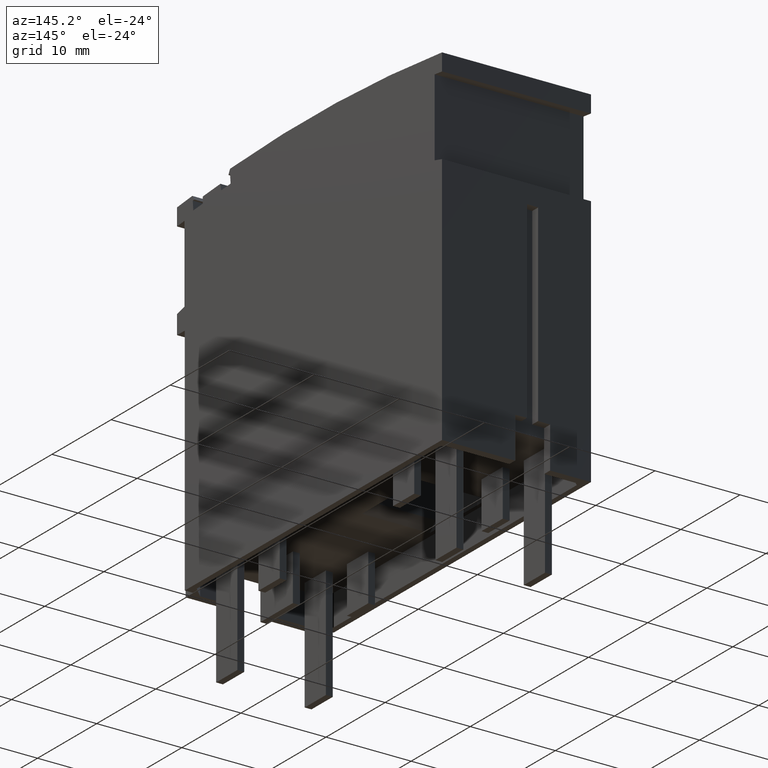
[diagram: clean part render]
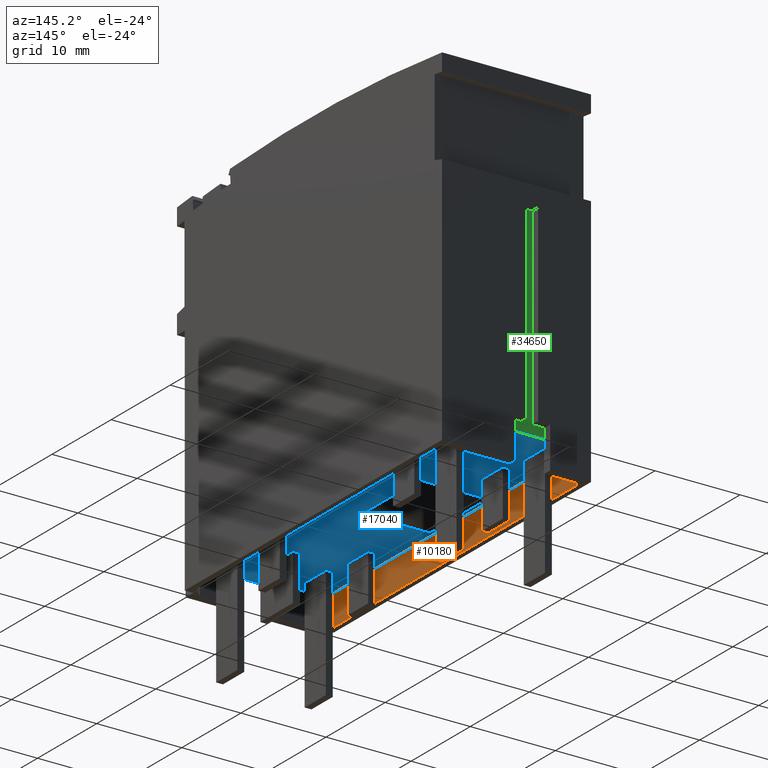
[diagram: same view with three faces highlighted in distinct colors, each labeled with its STEP entity id]
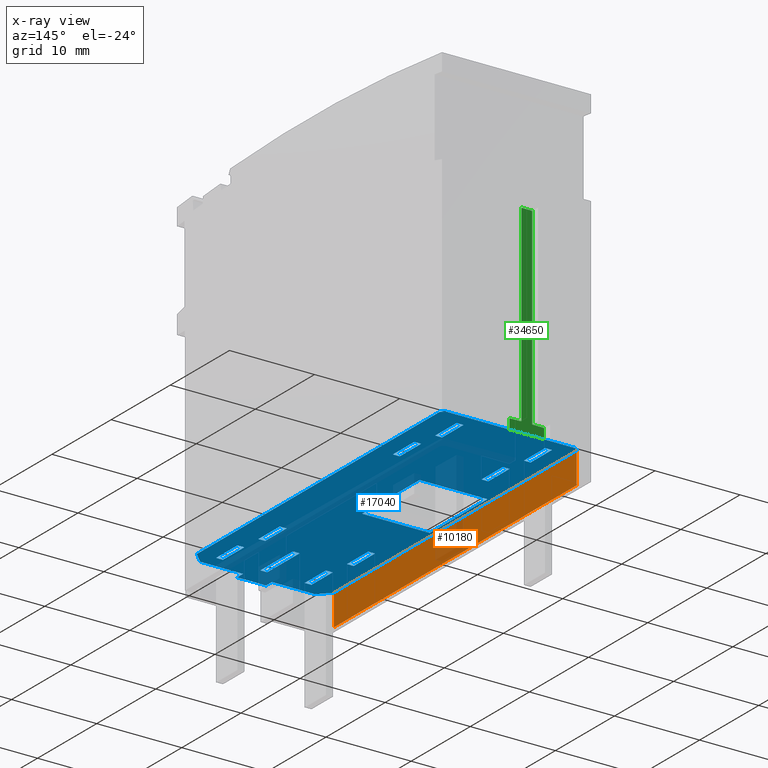
[diagram: x-ray of the same camera — body ghosted, the three highlighted faces saturated]
A machine part, auxiliary view with three faces highlighted in distinct colors.
The next image is the same camera in x-ray (body ghosted, the three faces saturated) — at least one of them is partly hidden behind the body in this view.
Their STEP definitions:

[orange] entity #10180 — the highlighted planar face has unit normal (1, -0, -0).
#7660=CARTESIAN_POINT('',(89.42419402639,27.8562740524438,
-48.7500000000925));
#7670=VERTEX_POINT('',#7660);
#7700=CARTESIAN_POINT('',(91.741351313916,27.8562740524438,
-48.7500000000925));
#7710=DIRECTION('',(-1.,0.,-2.44929359829471E-16));
#7720=VECTOR('',#7710,1.);
#7730=LINE('',#7700,#7720);
#7740=CARTESIAN_POINT('',(48.3413513139147,27.8562740524438,
-48.7500000000925));
#7750=VERTEX_POINT('',#7740);
#7760=EDGE_CURVE('',#7670,#7750,#7730,.T.);
#9620=CARTESIAN_POINT('',(48.3413513139147,-45.8562740524438,
-48.7500000000925));
#9630=DIRECTION('',(0.,1.,0.));
#9640=VECTOR('',#9630,1.);
#9650=LINE('',#9620,#9640);
#9660=CARTESIAN_POINT('',(48.3413513139147,31.5062740524438,
-48.7500000000925));
#9670=VERTEX_POINT('',#9660);
#9680=EDGE_CURVE('',#7750,#9670,#9650,.T.);
#9950=CARTESIAN_POINT('',(48.3413513139147,27.8562740524438,
-48.7500000000925));
#9960=DIRECTION('',(2.44929359829471E-16,0.,-1.));
#9970=DIRECTION('',(-1.,0.,-2.44929359829471E-16));
#9980=AXIS2_PLACEMENT_3D('',#9950,#9960,#9970);
#9990=PLANE('',#9980);
#10000=CARTESIAN_POINT('',(89.42419402639,-45.8562740524438,
-48.7500000000925));
#10010=DIRECTION('',(0.,1.,0.));
#10020=VECTOR('',#10010,1.);
#10030=LINE('',#10000,#10020);
#10040=CARTESIAN_POINT('',(89.42419402639,31.5062740524438,
-48.7500000000925));
#10050=VERTEX_POINT('',#10040);
#10060=EDGE_CURVE('',#7670,#10050,#10030,.T.);
#10070=ORIENTED_EDGE('',*,*,#10060,.F.);
#10080=CARTESIAN_POINT('',(91.741351313916,31.5062740524438,
-48.7500000000925));
#10090=DIRECTION('',(-1.,0.,-2.44929359829471E-16));
#10100=VECTOR('',#10090,1.);
#10110=LINE('',#10080,#10100);
#10120=EDGE_CURVE('',#10050,#9670,#10110,.T.);
#10130=ORIENTED_EDGE('',*,*,#10120,.F.);
#10140=ORIENTED_EDGE('',*,*,#9680,.T.);
#10150=ORIENTED_EDGE('',*,*,#7760,.T.);
#10160=EDGE_LOOP('',(#10150,#10140,#10130,#10070));
#10170=FACE_OUTER_BOUND('',#10160,.T.);
#10180=ADVANCED_FACE('',(#10170),#9990,.T.);

[blue] entity #17040 — the highlighted planar face has unit normal (-0, -0, -1).
#8810=CARTESIAN_POINT('',(91.741351313916,31.5062740524438,
-58.5000000000926));
#8820=VERTEX_POINT('',#8810);
#8850=CARTESIAN_POINT('',(91.741351313916,31.5062740524438,
-65.5500000000924));
#8860=DIRECTION('',(3.67394039744206E-16,0.,-1.));
#8870=VECTOR('',#8860,1.);
#8880=LINE('',#8850,#8870);
#8890=CARTESIAN_POINT('',(91.741351313916,31.5062740524438,
-55.1000000000925));
#8900=VERTEX_POINT('',#8890);
#8910=EDGE_CURVE('',#8900,#8820,#8880,.T.);
#9240=CARTESIAN_POINT('',(90.7413513139161,31.5062740524438,
-65.5500000000924));
#9250=DIRECTION('',(-2.44929359829471E-16,0.,1.));
#9260=VECTOR('',#9250,1.);
#9270=LINE('',#9240,#9260);
#9280=CARTESIAN_POINT('',(90.7413513139161,31.5062740524438,
-55.1000000000925));
#9290=VERTEX_POINT('',#9280);
#9300=CARTESIAN_POINT('',(90.741351313916,31.5062740524438,
-50.0671572876185));
#9310=VERTEX_POINT('',#9300);
#9320=EDGE_CURVE('',#9290,#9310,#9270,.T.);
#9660=CARTESIAN_POINT('',(48.3413513139147,31.5062740524438,
-48.7500000000925));
#9670=VERTEX_POINT('',#9660);
#9700=CARTESIAN_POINT('',(91.741351313916,31.5062740524438,
-5.35000000009199));
#9710=DIRECTION('',(-0.707106781186554,0.,-0.707106781186541));
#9720=VECTOR('',#9710,1.);
#9730=LINE('',#9700,#9720);
#9740=CARTESIAN_POINT('',(47.9413513139147,31.5062740524438,
-49.1500000000925));
#9750=VERTEX_POINT('',#9740);
#9760=EDGE_CURVE('',#9670,#9750,#9730,.T.);
#10040=CARTESIAN_POINT('',(89.42419402639,31.5062740524438,
-48.7500000000925));
#10050=VERTEX_POINT('',#10040);
#10080=CARTESIAN_POINT('',(91.741351313916,31.5062740524438,
-48.7500000000925));
#10090=DIRECTION('',(-1.,0.,-2.44929359829471E-16));
#10100=VECTOR('',#10090,1.);
#10110=LINE('',#10080,#10100);
#10120=EDGE_CURVE('',#10050,#9670,#10110,.T.);
#10320=CARTESIAN_POINT('',(91.741351313916,31.5062740524438,
-51.0671572876185));
#10330=DIRECTION('',(-0.707106781186559,0.,0.707106781186536));
#10340=VECTOR('',#10330,1.);
#10350=LINE('',#10320,#10340);
#10360=EDGE_CURVE('',#9310,#10050,#10350,.T.);
#10570=CARTESIAN_POINT('',(47.9413513139147,31.5062740524438,
-65.5500000000924));
#10580=DIRECTION('',(2.33503894187242E-16,0.,-1.));
#10590=VECTOR('',#10580,1.);
#10600=LINE('',#10570,#10590);
#10610=CARTESIAN_POINT('',(47.9413513139147,31.5062740524438,
-52.8500000000925));
#10620=VERTEX_POINT('',#10610);
#10630=EDGE_CURVE('',#9750,#10620,#10600,.T.);
#11650=CARTESIAN_POINT('',(47.9413513139147,31.5062740524438,
-64.4500000000926));
#11660=VERTEX_POINT('',#11650);
#11740=CARTESIAN_POINT('',(47.9413513139147,31.5062740524438,
-56.9500000000926));
#11750=VERTEX_POINT('',#11740);
#11780=EDGE_CURVE('',#11750,#11660,#10600,.T.);
#11960=CARTESIAN_POINT('',(91.741351313916,31.5062740524438,
-108.250000000093));
#11970=DIRECTION('',(0.707106781186554,0.,-0.707106781186541));
#11980=VECTOR('',#11970,1.);
#11990=LINE('',#11960,#11980);
#12000=CARTESIAN_POINT('',(48.3413513139147,31.5062740524438,
-64.8500000000926));
#12010=VERTEX_POINT('',#12000);
#12020=EDGE_CURVE('',#11660,#12010,#11990,.T.);
#12270=CARTESIAN_POINT('',(91.741351313916,31.5062740524438,
-64.8500000000926));
#12280=DIRECTION('',(1.,0.,1.22464679914735E-16));
#12290=VECTOR('',#12280,1.);
#12300=LINE('',#12270,#12290);
#12310=CARTESIAN_POINT('',(89.4241940253669,31.5062740524438,
-64.8500000000926));
#12320=VERTEX_POINT('',#12310);
#12330=EDGE_CURVE('',#12010,#12320,#12300,.T.);
#12580=CARTESIAN_POINT('',(91.741351313916,31.5062740524438,
-62.5328427115435));
#12590=DIRECTION('',(0.707106781186559,0.,0.707106781186536));
#12600=VECTOR('',#12590,1.);
#12610=LINE('',#12580,#12600);
#12620=CARTESIAN_POINT('',(90.741351313916,31.5062740524438,
-63.5328427115434));
#12630=VERTEX_POINT('',#12620);
#12640=EDGE_CURVE('',#12320,#12630,#12610,.T.);
#12870=CARTESIAN_POINT('',(90.741351313916,31.5062740524438,
-58.5000000000926));
#12880=VERTEX_POINT('',#12870);
#12930=CARTESIAN_POINT('',(90.7413513139161,31.5062740524438,
-65.5500000000924));
#12940=DIRECTION('',(-2.44929359829471E-16,0.,1.));
#12950=VECTOR('',#12940,1.);
#12960=LINE('',#12930,#12950);
#12970=EDGE_CURVE('',#12630,#12880,#12960,.T.);
#13170=CARTESIAN_POINT('',(91.741351313916,31.5062740524438,
-58.5000000000926));
#13180=DIRECTION('',(1.,0.,3.67394039744206E-16));
#13190=VECTOR('',#13180,1.);
#13200=LINE('',#13170,#13190);
#13210=EDGE_CURVE('',#12880,#8820,#13200,.T.);
#13330=CARTESIAN_POINT('',(54.8369267801929,31.5062740524438,
-57.2310781818231));
#13340=DIRECTION('',(0.,-1.,0.));
#13350=DIRECTION('',(1.,0.,2.4492935982947E-16));
#13360=AXIS2_PLACEMENT_3D('',#13330,#13340,#13350);
#13370=PLANE('',#13360);
#13380=CARTESIAN_POINT('',(91.741351313916,31.5062740524438,
-56.8000000000925));
#13390=DIRECTION('',(-1.,0.,-2.4492935982947E-16));
#13400=VECTOR('',#13390,1.);
#13410=LINE('',#13380,#13400);
#13420=CARTESIAN_POINT('',(89.0913513139154,31.5062740524438,
-56.8000000000925));
#13430=VERTEX_POINT('',#13420);
#13440=CARTESIAN_POINT('',(83.5913513139154,31.5062740524438,
-56.8000000000925));
#13450=VERTEX_POINT('',#13440);
#13460=EDGE_CURVE('',#13430,#13450,#13410,.T.);
#13470=ORIENTED_EDGE('',*,*,#13460,.F.);
#13480=CARTESIAN_POINT('',(83.5913513139154,31.5062740524438,
-65.5500000000924));
#13490=DIRECTION('',(2.4492935982947E-16,0.,-1.));
#13500=VECTOR('',#13490,1.);
#13510=LINE('',#13480,#13500);
#13520=CARTESIAN_POINT('',(83.5913513139154,31.5062740524438,
-57.6000000000925));
#13530=VERTEX_POINT('',#13520);
#13540=EDGE_CURVE('',#13450,#13530,#13510,.T.);
#13550=ORIENTED_EDGE('',*,*,#13540,.F.);
#13560=CARTESIAN_POINT('',(91.741351313916,31.5062740524438,
-57.6000000000925));
#13570=DIRECTION('',(1.,0.,2.4492935982947E-16));
#13580=VECTOR('',#13570,1.);
#13590=LINE('',#13560,#13580);
#13600=CARTESIAN_POINT('',(89.0913513139154,31.5062740524438,
-57.6000000000925));
#13610=VERTEX_POINT('',#13600);
#13620=EDGE_CURVE('',#13530,#13610,#13590,.T.);
#13630=ORIENTED_EDGE('',*,*,#13620,.F.);
#13640=CARTESIAN_POINT('',(89.0913513139154,31.5062740524438,
-65.5500000000924));
#13650=DIRECTION('',(-2.4492935982947E-16,0.,1.));
#13660=VECTOR('',#13650,1.);
#13670=LINE('',#13640,#13660);
#13680=EDGE_CURVE('',#13610,#13430,#13670,.T.);
#13690=ORIENTED_EDGE('',*,*,#13680,.F.);
#13700=EDGE_LOOP('',(#13690,#13630,#13550,#13470));
#13710=FACE_BOUND('',#13700,.T.);
#13720=CARTESIAN_POINT('',(91.741351313916,31.5062740524438,
-49.2500000000926));
#13730=DIRECTION('',(1.,0.,2.4492935982947E-16));
#13740=VECTOR('',#13730,1.);
#13750=LINE('',#13720,#13740);
#13760=CARTESIAN_POINT('',(62.7250151069632,31.5062740524438,
-49.2500000000926));
#13770=VERTEX_POINT('',#13760);
#13780=CARTESIAN_POINT('',(72.4576875208675,31.5062740524438,
-49.2500000000926));
#13790=VERTEX_POINT('',#13780);
#13800=EDGE_CURVE('',#13770,#13790,#13750,.T.);
#13810=ORIENTED_EDGE('',*,*,#13800,.T.);
#13820=CARTESIAN_POINT('',(62.7250151069632,31.5062740524438,
-52.7331681035687));
#13830=DIRECTION('',(-2.4492935982947E-16,0.,1.));
#13840=VECTOR('',#13830,1.);
#13850=LINE('',#13820,#13840);
#13860=CARTESIAN_POINT('',(62.7250151069632,31.5062740524438,
-57.2163362070448));
#13870=VERTEX_POINT('',#13860);
#13880=EDGE_CURVE('',#13870,#13770,#13850,.T.);
#13890=ORIENTED_EDGE('',*,*,#13880,.T.);
#13900=CARTESIAN_POINT('',(67.0913513139154,31.5062740524438,
-57.2163362070448));
#13910=DIRECTION('',(-1.,0.,-2.4492935982947E-16));
#13920=VECTOR('',#13910,1.);
#13930=LINE('',#13900,#13920);
#13940=CARTESIAN_POINT('',(72.4576875208675,31.5062740524438,
-57.2163362070448));
#13950=VERTEX_POINT('',#13940);
#13960=EDGE_CURVE('',#13950,#13870,#13930,.T.);
#13970=ORIENTED_EDGE('',*,*,#13960,.T.);
#13980=CARTESIAN_POINT('',(72.4576875208675,31.5062740524438,
-53.2331681035687));
#13990=DIRECTION('',(2.4492935982947E-16,0.,-1.));
#14000=VECTOR('',#13990,1.);
#14010=LINE('',#13980,#14000);
#14020=EDGE_CURVE('',#13790,#13950,#14010,.T.);
#14030=ORIENTED_EDGE('',*,*,#14020,.T.);
#14040=EDGE_LOOP('',(#14030,#13970,#13890,#13810));
#14050=FACE_BOUND('',#14040,.T.);
#14060=CARTESIAN_POINT('',(91.741351313916,31.5062740524438,
-62.8000000000926));
#14070=DIRECTION('',(1.,0.,2.4492935982947E-16));
#14080=VECTOR('',#14070,1.);
#14090=LINE('',#14060,#14080);
#14100=CARTESIAN_POINT('',(55.5913513139154,31.5062740524438,
-62.8000000000926));
#14110=VERTEX_POINT('',#14100);
#14120=CARTESIAN_POINT('',(59.1913513139154,31.5062740524438,
-62.8000000000926));
#14130=VERTEX_POINT('',#14120);
#14140=EDGE_CURVE('',#14110,#14130,#14090,.T.);
#14150=ORIENTED_EDGE('',*,*,#14140,.F.);
#14160=CARTESIAN_POINT('',(59.1913513139154,31.5062740524438,
-65.5500000000924));
#14170=DIRECTION('',(-2.4492935982947E-16,0.,1.));
#14180=VECTOR('',#14170,1.);
#14190=LINE('',#14160,#14180);
#14200=CARTESIAN_POINT('',(59.1913513139154,31.5062740524438,
-62.0000000000926));
#14210=VERTEX_POINT('',#14200);
#14220=EDGE_CURVE('',#14130,#14210,#14190,.T.);
#14230=ORIENTED_EDGE('',*,*,#14220,.F.);
#14240=CARTESIAN_POINT('',(91.741351313916,31.5062740524438,
-62.0000000000926));
#14250=DIRECTION('',(-1.,0.,-2.4492935982947E-16));
#14260=VECTOR('',#14250,1.);
#14270=LINE('',#14240,#14260);
#14280=CARTESIAN_POINT('',(55.5913513139154,31.5062740524438,
-62.0000000000926));
#14290=VERTEX_POINT('',#14280);
#14300=EDGE_CURVE('',#14210,#14290,#14270,.T.);
#14310=ORIENTED_EDGE('',*,*,#14300,.F.);
#14320=CARTESIAN_POINT('',(55.5913513139154,31.5062740524438,
-65.5500000000924));
#14330=DIRECTION('',(2.4492935982947E-16,0.,-1.));
#14340=VECTOR('',#14330,1.);
#14350=LINE('',#14320,#14340);
#14360=EDGE_CURVE('',#14290,#14110,#14350,.T.);
#14370=ORIENTED_EDGE('',*,*,#14360,.F.);
#14380=EDGE_LOOP('',(#14370,#14310,#14230,#14150));
#14390=FACE_BOUND('',#14380,.T.);
#14400=CARTESIAN_POINT('',(79.4913513139153,31.5062740524438,
-65.5500000000924));
#14410=DIRECTION('',(2.4492935982947E-16,0.,-1.));
#14420=VECTOR('',#14410,1.);
#14430=LINE('',#14400,#14420);
#14440=CARTESIAN_POINT('',(79.4913513139153,31.5062740524438,
-50.8000000000926));
#14450=VERTEX_POINT('',#14440);
#14460=CARTESIAN_POINT('',(79.4913513139153,31.5062740524438,
-51.6000000000926));
#14470=VERTEX_POINT('',#14460);
#14480=EDGE_CURVE('',#14450,#14470,#14430,.T.);
#14490=ORIENTED_EDGE('',*,*,#14480,.F.);
#14500=CARTESIAN_POINT('',(91.741351313916,31.5062740524438,
-51.6000000000926));
#14510=DIRECTION('',(1.,0.,2.4492935982947E-16));
#14520=VECTOR('',#14510,1.);
#14530=LINE('',#14500,#14520);
#14540=CARTESIAN_POINT('',(83.0913513139153,31.5062740524438,
-51.6000000000926));
#14550=VERTEX_POINT('',#14540);
#14560=EDGE_CURVE('',#14470,#14550,#14530,.T.);
#14570=ORIENTED_EDGE('',*,*,#14560,.F.);
#14580=CARTESIAN_POINT('',(83.0913513139153,31.5062740524438,
-65.5500000000924));
#14590=DIRECTION('',(-2.4492935982947E-16,0.,1.));
#14600=VECTOR('',#14590,1.);
#14610=LINE('',#14580,#14600);
#14620=CARTESIAN_POINT('',(83.0913513139153,31.5062740524438,
-50.8000000000926));
#14630=VERTEX_POINT('',#14620);
#14640=EDGE_CURVE('',#14550,#14630,#14610,.T.);
#14650=ORIENTED_EDGE('',*,*,#14640,.F.);
#14660=CARTESIAN_POINT('',(91.741351313916,31.5062740524438,
-50.8000000000926));
#14670=DIRECTION('',(-1.,0.,-2.4492935982947E-16));
#14680=VECTOR('',#14670,1.);
#14690=LINE('',#14660,#14680);
#14700=EDGE_CURVE('',#14630,#14450,#14690,.T.);
#14710=ORIENTED_EDGE('',*,*,#14700,.F.);
#14720=EDGE_LOOP('',(#14710,#14650,#14570,#14490));
#14730=FACE_BOUND('',#14720,.T.);
#14740=CARTESIAN_POINT('',(91.741351313916,31.5062740524438,
-52.4000000000926));
#14750=DIRECTION('',(1.,0.,2.4492935982947E-16));
#14760=VECTOR('',#14750,1.);
#14770=LINE('',#14740,#14760);
#14780=CARTESIAN_POINT('',(55.5913513139154,31.5062740524438,
-52.4000000000926));
#14790=VERTEX_POINT('',#14780);
#14800=CARTESIAN_POINT('',(59.1913513139154,31.5062740524438,
-52.4000000000926));
#14810=VERTEX_POINT('',#14800);
#14820=EDGE_CURVE('',#14790,#14810,#14770,.T.);
#14830=ORIENTED_EDGE('',*,*,#14820,.F.);
#14840=CARTESIAN_POINT('',(59.1913513139154,31.5062740524438,
-65.5500000000924));
#14850=DIRECTION('',(-2.4492935982947E-16,0.,1.));
#14860=VECTOR('',#14850,1.);
#14870=LINE('',#14840,#14860);
#14880=CARTESIAN_POINT('',(59.1913513139154,31.5062740524438,
-51.6000000000926));
#14890=VERTEX_POINT('',#14880);
#14900=EDGE_CURVE('',#14810,#14890,#14870,.T.);
#14910=ORIENTED_EDGE('',*,*,#14900,.F.);
#14920=CARTESIAN_POINT('',(91.741351313916,31.5062740524438,
-51.6000000000926));
#14930=DIRECTION('',(-1.,0.,-2.4492935982947E-16));
#14940=VECTOR('',#14930,1.);
#14950=LINE('',#14920,#14940);
#14960=CARTESIAN_POINT('',(55.5913513139154,31.5062740524438,
-51.6000000000926));
#14970=VERTEX_POINT('',#14960);
#14980=EDGE_CURVE('',#14890,#14970,#14950,.T.);
#14990=ORIENTED_EDGE('',*,*,#14980,.F.);
#15000=CARTESIAN_POINT('',(55.5913513139154,31.5062740524438,
-65.5500000000924));
#15010=DIRECTION('',(2.4492935982947E-16,0.,-1.));
#15020=VECTOR('',#15010,1.);
#15030=LINE('',#15000,#15020);
#15040=EDGE_CURVE('',#14970,#14790,#15030,.T.);
#15050=ORIENTED_EDGE('',*,*,#15040,.F.);
#15060=EDGE_LOOP('',(#15050,#14990,#14910,#14830));
#15070=FACE_BOUND('',#15060,.T.);
#15080=CARTESIAN_POINT('',(91.741351313916,31.5062740524438,
-61.2000000000926));
#15090=DIRECTION('',(-1.,0.,-2.4492935982947E-16));
#15100=VECTOR('',#15090,1.);
#15110=LINE('',#15080,#15100);
#15120=CARTESIAN_POINT('',(83.0913513139153,31.5062740524438,
-61.2000000000926));
#15130=VERTEX_POINT('',#15120);
#15140=CARTESIAN_POINT('',(79.4913513139153,31.5062740524438,
-61.2000000000926));
#15150=VERTEX_POINT('',#15140);
#15160=EDGE_CURVE('',#15130,#15150,#15110,.T.);
#15170=ORIENTED_EDGE('',*,*,#15160,.F.);
#15180=CARTESIAN_POINT('',(79.4913513139153,31.5062740524438,
-65.5500000000924));
#15190=DIRECTION('',(2.4492935982947E-16,0.,-1.));
#15200=VECTOR('',#15190,1.);
#15210=LINE('',#15180,#15200);
#15220=CARTESIAN_POINT('',(79.4913513139153,31.5062740524438,
-62.0000000000926));
#15230=VERTEX_POINT('',#15220);
#15240=EDGE_CURVE('',#15150,#15230,#15210,.T.);
#15250=ORIENTED_EDGE('',*,*,#15240,.F.);
#15260=CARTESIAN_POINT('',(91.741351313916,31.5062740524438,
-62.0000000000926));
#15270=DIRECTION('',(1.,0.,2.4492935982947E-16));
#15280=VECTOR('',#15270,1.);
#15290=LINE('',#15260,#15280);
#15300=CARTESIAN_POINT('',(83.0913513139153,31.5062740524438,
-62.0000000000926));
#15310=VERTEX_POINT('',#15300);
#15320=EDGE_CURVE('',#15230,#15310,#15290,.T.);
#15330=ORIENTED_EDGE('',*,*,#15320,.F.);
#15340=CARTESIAN_POINT('',(83.0913513139153,31.5062740524438,
-65.5500000000924));
#15350=DIRECTION('',(-2.4492935982947E-16,0.,1.));
#15360=VECTOR('',#15350,1.);
#15370=LINE('',#15340,#15360);
#15380=EDGE_CURVE('',#15310,#15130,#15370,.T.);
#15390=ORIENTED_EDGE('',*,*,#15380,.F.);
#15400=EDGE_LOOP('',(#15390,#15330,#15250,#15170));
#15410=FACE_BOUND('',#15400,.T.);
#15420=ORIENTED_EDGE('',*,*,#13210,.T.);
#15430=ORIENTED_EDGE('',*,*,#12970,.T.);
#15440=ORIENTED_EDGE('',*,*,#12640,.T.);
#15450=ORIENTED_EDGE('',*,*,#12330,.T.);
#15460=ORIENTED_EDGE('',*,*,#12020,.T.);
#15470=ORIENTED_EDGE('',*,*,#11780,.T.);
#15480=CARTESIAN_POINT('',(47.9413513139147,31.5062740524438,
-65.5500000000924));
#15490=DIRECTION('',(2.44929359829471E-16,0.,-1.));
#15500=VECTOR('',#15490,1.);
#15510=LINE('',#15480,#15500);
#15520=EDGE_CURVE('',#10620,#11750,#15510,.T.);
#15530=ORIENTED_EDGE('',*,*,#15520,.T.);
#15540=ORIENTED_EDGE('',*,*,#10630,.T.);
#15550=ORIENTED_EDGE('',*,*,#9760,.T.);
#15560=ORIENTED_EDGE('',*,*,#10120,.T.);
#15570=ORIENTED_EDGE('',*,*,#10360,.T.);
#15580=ORIENTED_EDGE('',*,*,#9320,.T.);
#15590=CARTESIAN_POINT('',(91.741351313916,31.5062740524438,
-55.1000000000925));
#15600=DIRECTION('',(1.,0.,3.67394039744206E-16));
#15610=VECTOR('',#15600,1.);
#15620=LINE('',#15590,#15610);
#15630=EDGE_CURVE('',#9290,#8900,#15620,.T.);
#15640=ORIENTED_EDGE('',*,*,#15630,.F.);
#15650=ORIENTED_EDGE('',*,*,#8910,.F.);
#15660=EDGE_LOOP('',(#15650,#15640,#15580,#15570,#15560,#15550,#15540,
#15530,#15470,#15460,#15450,#15440,#15430,#15420));
#15670=FACE_OUTER_BOUND('',#15660,.T.);
#15680=CARTESIAN_POINT('',(5.6843418860808E-14,31.5062740524438,
-50.8000000000926));
#15690=DIRECTION('',(-1.,0.,-2.4492935982947E-16));
#15700=VECTOR('',#15690,1.);
#15710=LINE('',#15680,#15700);
#15720=CARTESIAN_POINT('',(53.1913513139154,31.5062740524438,
-50.8000000000926));
#15730=VERTEX_POINT('',#15720);
#15740=CARTESIAN_POINT('',(49.5913513139154,31.5062740524438,
-50.8000000000926));
#15750=VERTEX_POINT('',#15740);
#15760=EDGE_CURVE('',#15730,#15750,#15710,.T.);
#15770=ORIENTED_EDGE('',*,*,#15760,.F.);
#15780=CARTESIAN_POINT('',(49.5913513139154,31.5062740524438,
0.0499999999075413));
#15790=DIRECTION('',(2.4492935982947E-16,0.,-1.));
#15800=VECTOR('',#15790,1.);
#15810=LINE('',#15780,#15800);
#15820=CARTESIAN_POINT('',(49.5913513139154,31.5062740524438,
-51.6000000000926));
#15830=VERTEX_POINT('',#15820);
#15840=EDGE_CURVE('',#15750,#15830,#15810,.T.);
#15850=ORIENTED_EDGE('',*,*,#15840,.F.);
#15860=CARTESIAN_POINT('',(5.6843418860808E-14,31.5062740524438,
-51.6000000000926));
#15870=DIRECTION('',(1.,0.,2.4492935982947E-16));
#15880=VECTOR('',#15870,1.);
#15890=LINE('',#15860,#15880);
#15900=CARTESIAN_POINT('',(53.1913513139154,31.5062740524438,
-51.6000000000926));
#15910=VERTEX_POINT('',#15900);
#15920=EDGE_CURVE('',#15830,#15910,#15890,.T.);
#15930=ORIENTED_EDGE('',*,*,#15920,.F.);
#15940=CARTESIAN_POINT('',(53.1913513139154,31.5062740524438,
0.0499999999075413));
#15950=DIRECTION('',(-2.4492935982947E-16,0.,1.));
#15960=VECTOR('',#15950,1.);
#15970=LINE('',#15940,#15960);
#15980=EDGE_CURVE('',#15910,#15730,#15970,.T.);
#15990=ORIENTED_EDGE('',*,*,#15980,.F.);
#16000=EDGE_LOOP('',(#15990,#15930,#15850,#15770));
#16010=FACE_BOUND('',#16000,.T.);
#16020=CARTESIAN_POINT('',(5.6843418860808E-14,31.5062740524438,
-61.2000000000926));
#16030=DIRECTION('',(-1.,0.,-2.4492935982947E-16));
#16040=VECTOR('',#16030,1.);
#16050=LINE('',#16020,#16040);
#16060=CARTESIAN_POINT('',(53.1913513139154,31.5062740524438,
-61.2000000000926));
#16070=VERTEX_POINT('',#16060);
#16080=CARTESIAN_POINT('',(49.5913513139151,31.5062740524438,
-61.2000000000926));
#16090=VERTEX_POINT('',#16080);
#16100=EDGE_CURVE('',#16070,#16090,#16050,.T.);
#16110=ORIENTED_EDGE('',*,*,#16100,.F.);
#16120=CARTESIAN_POINT('',(49.5913513139151,31.5062740524438,
0.0499999999075413));
#16130=DIRECTION('',(2.4492935982947E-16,0.,-1.));
#16140=VECTOR('',#16130,1.);
#16150=LINE('',#16120,#16140);
#16160=CARTESIAN_POINT('',(49.5913513139151,31.5062740524438,
-62.0000000000926));
#16170=VERTEX_POINT('',#16160);
#16180=EDGE_CURVE('',#16090,#16170,#16150,.T.);
#16190=ORIENTED_EDGE('',*,*,#16180,.F.);
#16200=CARTESIAN_POINT('',(5.6843418860808E-14,31.5062740524438,
-62.0000000000926));
#16210=DIRECTION('',(1.,0.,2.4492935982947E-16));
#16220=VECTOR('',#16210,1.);
#16230=LINE('',#16200,#16220);
#16240=CARTESIAN_POINT('',(53.1913513139154,31.5062740524438,
-62.0000000000926));
#16250=VERTEX_POINT('',#16240);
#16260=EDGE_CURVE('',#16170,#16250,#16230,.T.);
#16270=ORIENTED_EDGE('',*,*,#16260,.F.);
#16280=CARTESIAN_POINT('',(53.1913513139154,31.5062740524438,
0.0499999999075413));
#16290=DIRECTION('',(-2.4492935982947E-16,0.,1.));
#16300=VECTOR('',#16290,1.);
#16310=LINE('',#16280,#16300);
#16320=EDGE_CURVE('',#16250,#16070,#16310,.T.);
#16330=ORIENTED_EDGE('',*,*,#16320,.F.);
#16340=EDGE_LOOP('',(#16330,#16270,#16190,#16110));
#16350=FACE_BOUND('',#16340,.T.);
#16360=CARTESIAN_POINT('',(5.6843418860808E-14,31.5062740524438,
-62.0000000000926));
#16370=DIRECTION('',(-1.,0.,-2.4492935982947E-16));
#16380=VECTOR('',#16370,1.);
#16390=LINE('',#16360,#16380);
#16400=CARTESIAN_POINT('',(89.0913513139153,31.5062740524438,
-62.0000000000926));
#16410=VERTEX_POINT('',#16400);
#16420=CARTESIAN_POINT('',(85.4913513139153,31.5062740524438,
-62.0000000000926));
#16430=VERTEX_POINT('',#16420);
#16440=EDGE_CURVE('',#16410,#16430,#16390,.T.);
#16450=ORIENTED_EDGE('',*,*,#16440,.F.);
#16460=CARTESIAN_POINT('',(85.4913513139153,31.5062740524438,
0.0499999999075413));
#16470=DIRECTION('',(2.4492935982947E-16,0.,-1.));
#16480=VECTOR('',#16470,1.);
#16490=LINE('',#16460,#16480);
#16500=CARTESIAN_POINT('',(85.4913513139153,31.5062740524438,
-62.8000000000926));
#16510=VERTEX_POINT('',#16500);
#16520=EDGE_CURVE('',#16430,#16510,#16490,.T.);
#16530=ORIENTED_EDGE('',*,*,#16520,.F.);
#16540=CARTESIAN_POINT('',(5.6843418860808E-14,31.5062740524438,
-62.8000000000926));
#16550=DIRECTION('',(1.,0.,2.4492935982947E-16));
#16560=VECTOR('',#16550,1.);
#16570=LINE('',#16540,#16560);
#16580=CARTESIAN_POINT('',(89.0913513139153,31.5062740524438,
-62.8000000000926));
#16590=VERTEX_POINT('',#16580);
#16600=EDGE_CURVE('',#16510,#16590,#16570,.T.);
#16610=ORIENTED_EDGE('',*,*,#16600,.F.);
#16620=CARTESIAN_POINT('',(89.0913513139153,31.5062740524438,
0.0499999999075413));
#16630=DIRECTION('',(-2.4492935982947E-16,0.,1.));
#16640=VECTOR('',#16630,1.);
#16650=LINE('',#16620,#16640);
#16660=EDGE_CURVE('',#16590,#16410,#16650,.T.);
#16670=ORIENTED_EDGE('',*,*,#16660,.F.);
#16680=EDGE_LOOP('',(#16670,#16610,#16530,#16450));
#16690=FACE_BOUND('',#16680,.T.);
#16700=CARTESIAN_POINT('',(5.6843418860808E-14,31.5062740524438,
-51.6000000000925));
#16710=DIRECTION('',(-1.,0.,-2.4492935982947E-16));
#16720=VECTOR('',#16710,1.);
#16730=LINE('',#16700,#16720);
#16740=CARTESIAN_POINT('',(89.0913513139153,31.5062740524438,
-51.6000000000925));
#16750=VERTEX_POINT('',#16740);
#16760=CARTESIAN_POINT('',(85.4913513139153,31.5062740524438,
-51.6000000000925));
#16770=VERTEX_POINT('',#16760);
#16780=EDGE_CURVE('',#16750,#16770,#16730,.T.);
#16790=ORIENTED_EDGE('',*,*,#16780,.F.);
#16800=CARTESIAN_POINT('',(85.4913513139153,31.5062740524438,
0.0499999999075413));
#16810=DIRECTION('',(2.4492935982947E-16,0.,-1.));
#16820=VECTOR('',#16810,1.);
#16830=LINE('',#16800,#16820);
#16840=CARTESIAN_POINT('',(85.4913513139153,31.5062740524438,
-52.4000000000925));
#16850=VERTEX_POINT('',#16840);
#16860=EDGE_CURVE('',#16770,#16850,#16830,.T.);
#16870=ORIENTED_EDGE('',*,*,#16860,.F.);
#16880=CARTESIAN_POINT('',(5.6843418860808E-14,31.5062740524438,
-52.4000000000925));
#16890=DIRECTION('',(1.,0.,2.4492935982947E-16));
#16900=VECTOR('',#16890,1.);
#16910=LINE('',#16880,#16900);
#16920=CARTESIAN_POINT('',(89.0913513139153,31.5062740524438,
-52.4000000000925));
#16930=VERTEX_POINT('',#16920);
#16940=EDGE_CURVE('',#16850,#16930,#16910,.T.);
#16950=ORIENTED_EDGE('',*,*,#16940,.F.);
#16960=CARTESIAN_POINT('',(89.0913513139153,31.5062740524438,
0.0499999999075413));
#16970=DIRECTION('',(-2.4492935982947E-16,0.,1.));
#16980=VECTOR('',#16970,1.);
#16990=LINE('',#16960,#16980);
#17000=EDGE_CURVE('',#16930,#16750,#16990,.T.);
#17010=ORIENTED_EDGE('',*,*,#17000,.F.);
#17020=EDGE_LOOP('',(#17010,#16950,#16870,#16790));
#17030=FACE_BOUND('',#17020,.T.);
#17040=ADVANCED_FACE('',(#13710,#14050,#14390,#14730,#15070,#15410,
#15670,#16010,#16350,#16690,#17030),#13370,.T.);

[green] entity #34650 — the highlighted planar face has unit normal (0, 1, -0).
#10610=CARTESIAN_POINT('',(47.9413513139147,31.5062740524438,
-52.8500000000925));
#10620=VERTEX_POINT('',#10610);
#11740=CARTESIAN_POINT('',(47.9413513139147,31.5062740524438,
-56.9500000000926));
#11750=VERTEX_POINT('',#11740);
#15480=CARTESIAN_POINT('',(47.9413513139147,31.5062740524438,
-65.5500000000924));
#15490=DIRECTION('',(2.44929359829471E-16,0.,-1.));
#15500=VECTOR('',#15490,1.);
#15510=LINE('',#15480,#15500);
#15520=EDGE_CURVE('',#10620,#11750,#15510,.T.);
#33370=CARTESIAN_POINT('',(47.9413513139147,-45.8562740524438,
-52.8500000000925));
#33380=DIRECTION('',(0.,1.,0.));
#33390=VECTOR('',#33380,1.);
#33400=LINE('',#33370,#33390);
#33410=CARTESIAN_POINT('',(47.9413513139147,32.7062740521331,
-52.8500000000925));
#33420=VERTEX_POINT('',#33410);
#33430=EDGE_CURVE('',#10620,#33420,#33400,.T.);
#33680=CARTESIAN_POINT('',(47.9413513139147,32.9279533755885,
-65.5500000000924));
#33690=DIRECTION('',(2.46330733588707E-16,0.0174524063481192,
-0.999847695157948));
#33700=VECTOR('',#33690,1.);
#33710=LINE('',#33680,#33700);
#33720=CARTESIAN_POINT('',(47.9413513139147,32.7307111429077,
-54.2500000000925));
#33730=VERTEX_POINT('',#33720);
#33740=EDGE_CURVE('',#33420,#33730,#33710,.T.);
#33990=CARTESIAN_POINT('',(47.9413513139147,-45.8562740524438,
-54.2500000000925));
#34000=DIRECTION('',(0.,1.,0.));
#34010=VECTOR('',#34000,1.);
#34020=LINE('',#33990,#34010);
#34030=CARTESIAN_POINT('',(47.9413513139147,55.2835824675664,
-54.2500000000925));
#34040=VERTEX_POINT('',#34030);
#34050=EDGE_CURVE('',#33730,#34040,#34020,.T.);
#34240=CARTESIAN_POINT('',(47.9413513139147,39.7062740524438,
-54.9000000000926));
#34250=DIRECTION('',(-1.,0.,-2.44929359829471E-16));
#34260=DIRECTION('',(0.,1.,0.));
#34270=AXIS2_PLACEMENT_3D('',#34240,#34250,#34260);
#34280=PLANE('',#34270);
#34290=CARTESIAN_POINT('',(47.9413513139147,-45.8562740524438,
-56.9500000000926));
#34300=DIRECTION('',(0.,-1.,0.));
#34310=VECTOR('',#34300,1.);
#34320=LINE('',#34290,#34310);
#34330=CARTESIAN_POINT('',(47.9413513139147,32.7062740524438,
-56.9500000000926));
#34340=VERTEX_POINT('',#34330);
#34350=EDGE_CURVE('',#34340,#11750,#34320,.T.);
#34360=ORIENTED_EDGE('',*,*,#34350,.T.);
#34370=CARTESIAN_POINT('',(47.9413513139147,32.556160493294,
-65.5500000000924));
#34380=DIRECTION('',(2.46330733588707E-16,-0.0174524065264479,
-0.999847695154835));
#34390=VECTOR('',#34380,1.);
#34400=LINE('',#34370,#34390);
#34410=CARTESIAN_POINT('',(47.9413513139147,32.7307111434682,
-55.5500000000926));
#34420=VERTEX_POINT('',#34410);
#34430=EDGE_CURVE('',#34420,#34340,#34400,.T.);
#34440=ORIENTED_EDGE('',*,*,#34430,.T.);
#34450=CARTESIAN_POINT('',(47.9413513139147,-45.8562740524438,
-55.5500000000926));
#34460=DIRECTION('',(0.,-1.,0.));
#34470=VECTOR('',#34460,1.);
#34480=LINE('',#34450,#34470);
#34490=CARTESIAN_POINT('',(47.9413513139147,55.3062740518571,
-55.5500000000926));
#34500=VERTEX_POINT('',#34490);
#34510=EDGE_CURVE('',#34500,#34420,#34480,.T.);
#34520=ORIENTED_EDGE('',*,*,#34510,.T.);
#34530=CARTESIAN_POINT('',(47.9413513139147,55.4808247002472,
-65.5500000000924));
#34540=DIRECTION('',(2.46330733588707E-16,0.0174524063481192,
-0.999847695157948));
#34550=VECTOR('',#34540,1.);
#34560=LINE('',#34530,#34550);
#34570=EDGE_CURVE('',#34040,#34500,#34560,.T.);
#34580=ORIENTED_EDGE('',*,*,#34570,.T.);
#34590=ORIENTED_EDGE('',*,*,#34050,.T.);
#34600=ORIENTED_EDGE('',*,*,#33740,.T.);
#34610=ORIENTED_EDGE('',*,*,#33430,.T.);
#34620=ORIENTED_EDGE('',*,*,#15520,.F.);
#34630=EDGE_LOOP('',(#34620,#34610,#34600,#34590,#34580,#34520,#34440,
#34360));
#34640=FACE_OUTER_BOUND('',#34630,.T.);
#34650=ADVANCED_FACE('',(#34640),#34280,.T.);